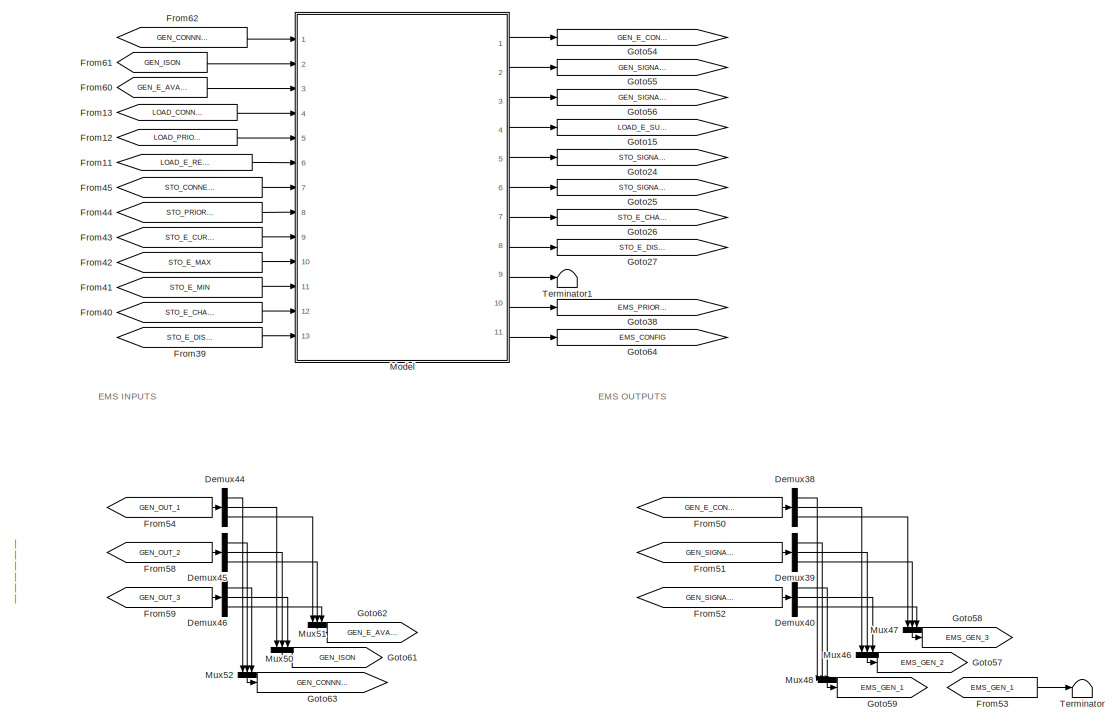
[diagram: root canvas - part 1/6, top right region]
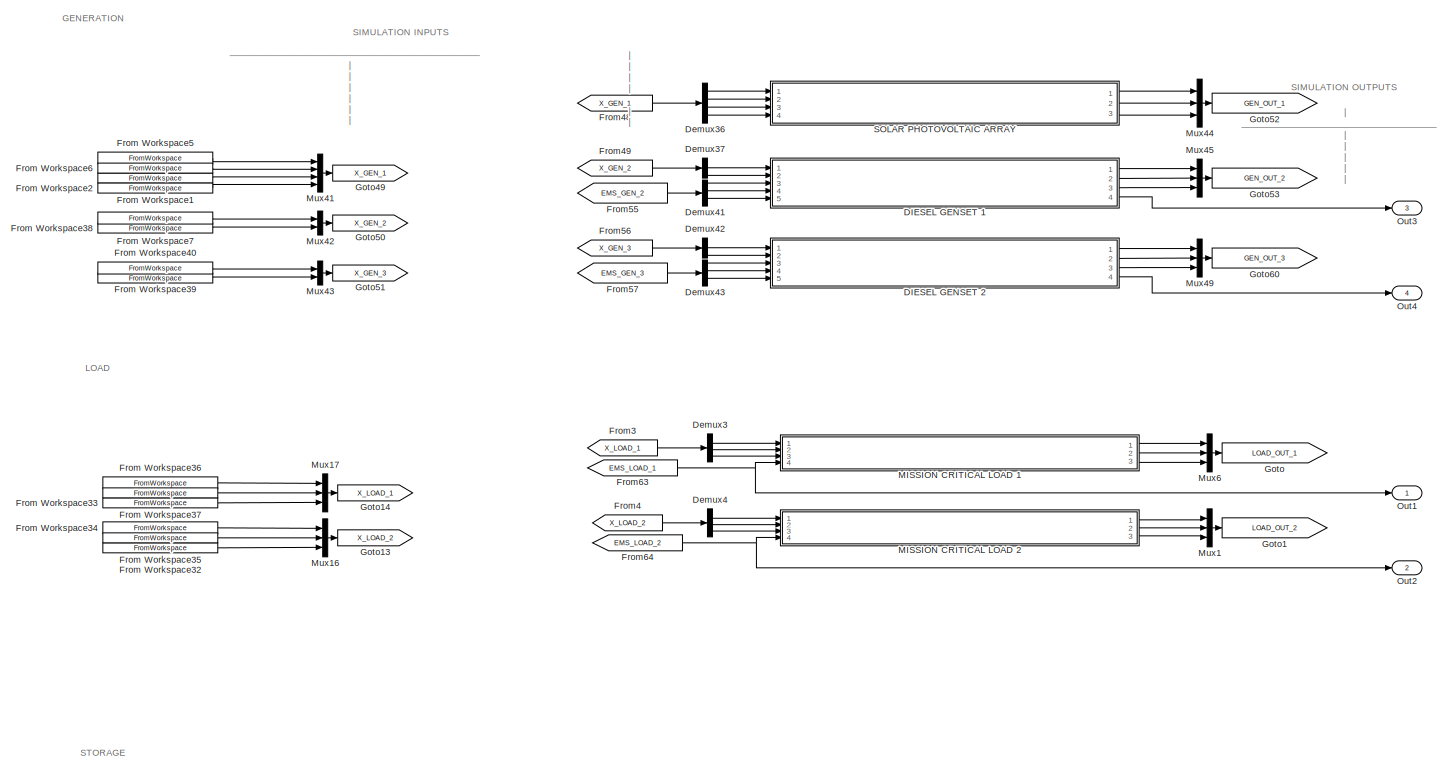
[diagram: root canvas - part 2/6, middle left region]
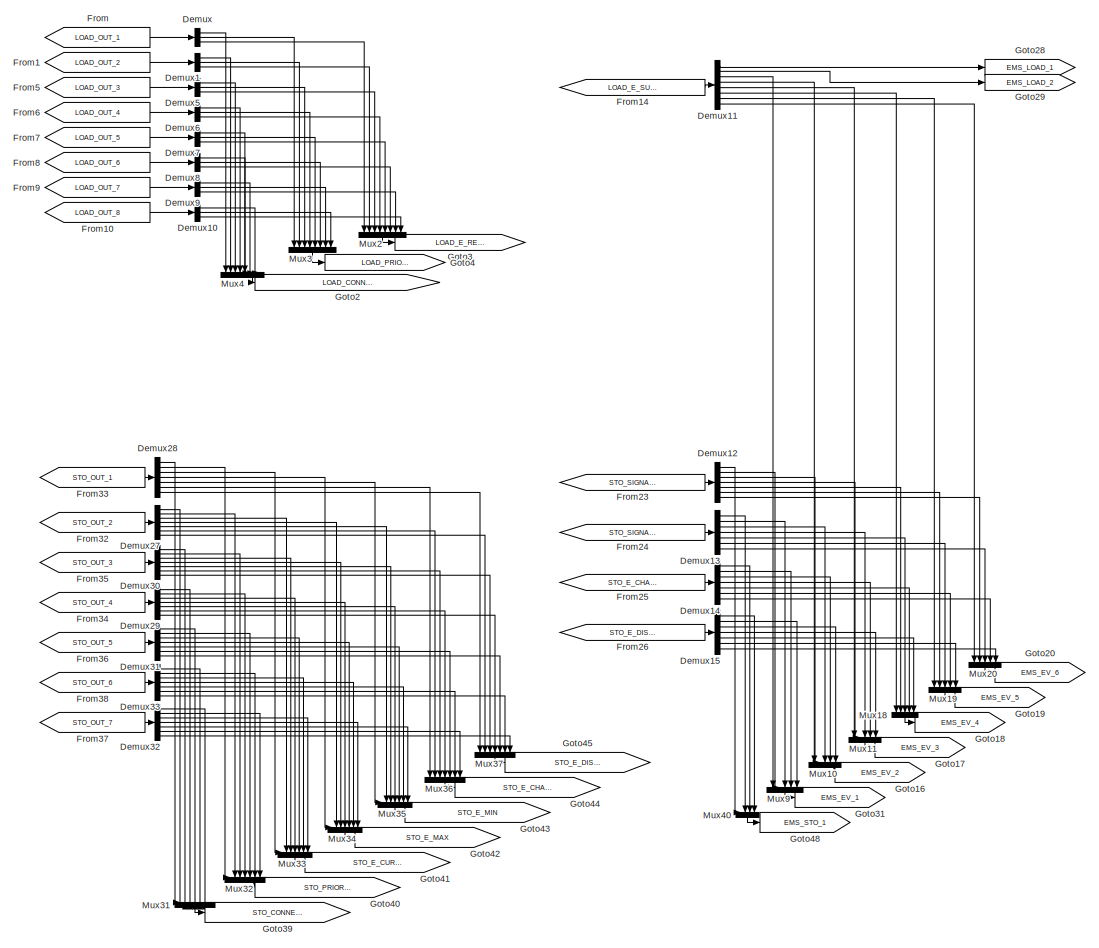
[diagram: root canvas - part 3/6, middle right region]
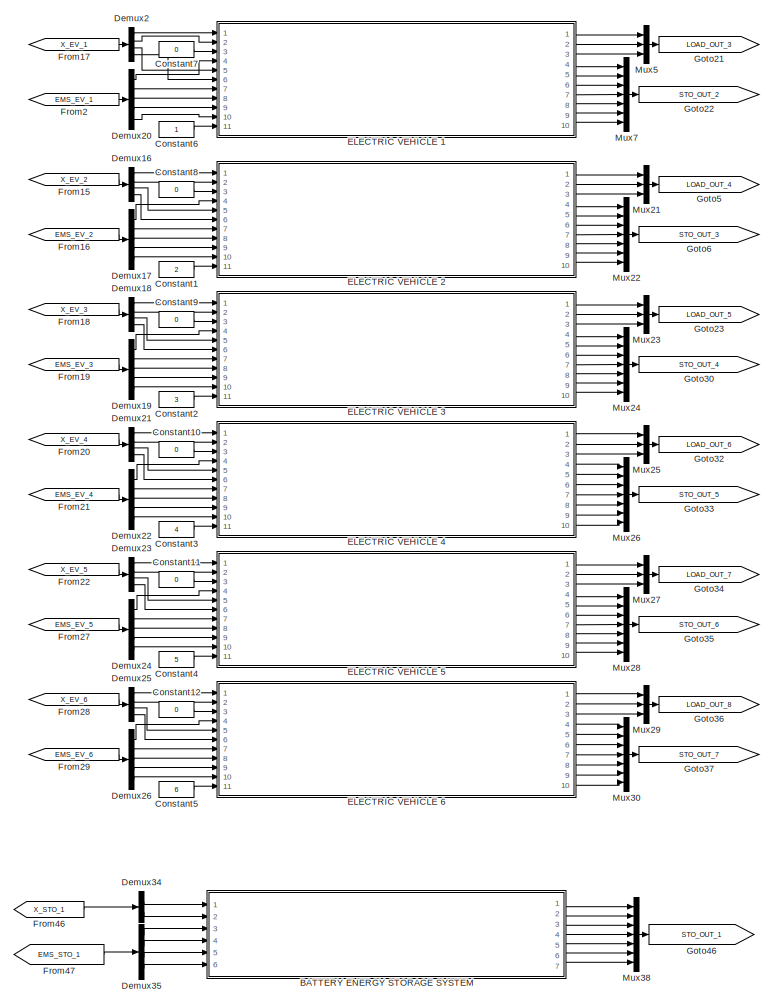
[diagram: root canvas - part 4/6, bottom left region]
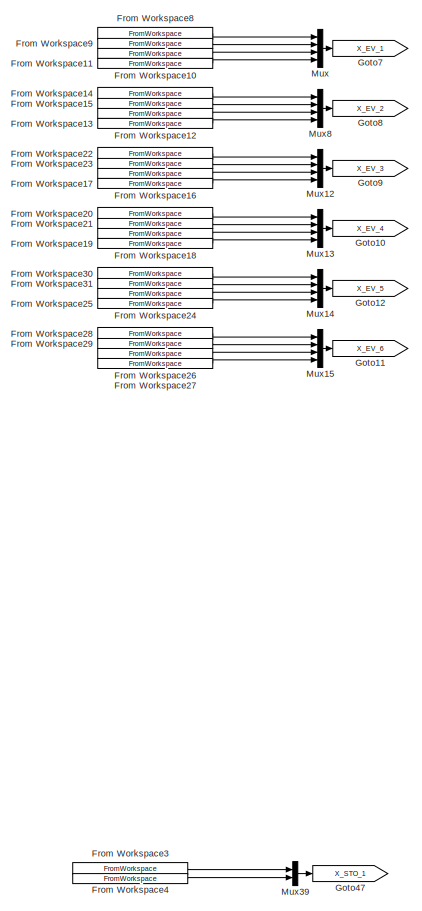
[diagram: root canvas - part 5/6, bottom left region]
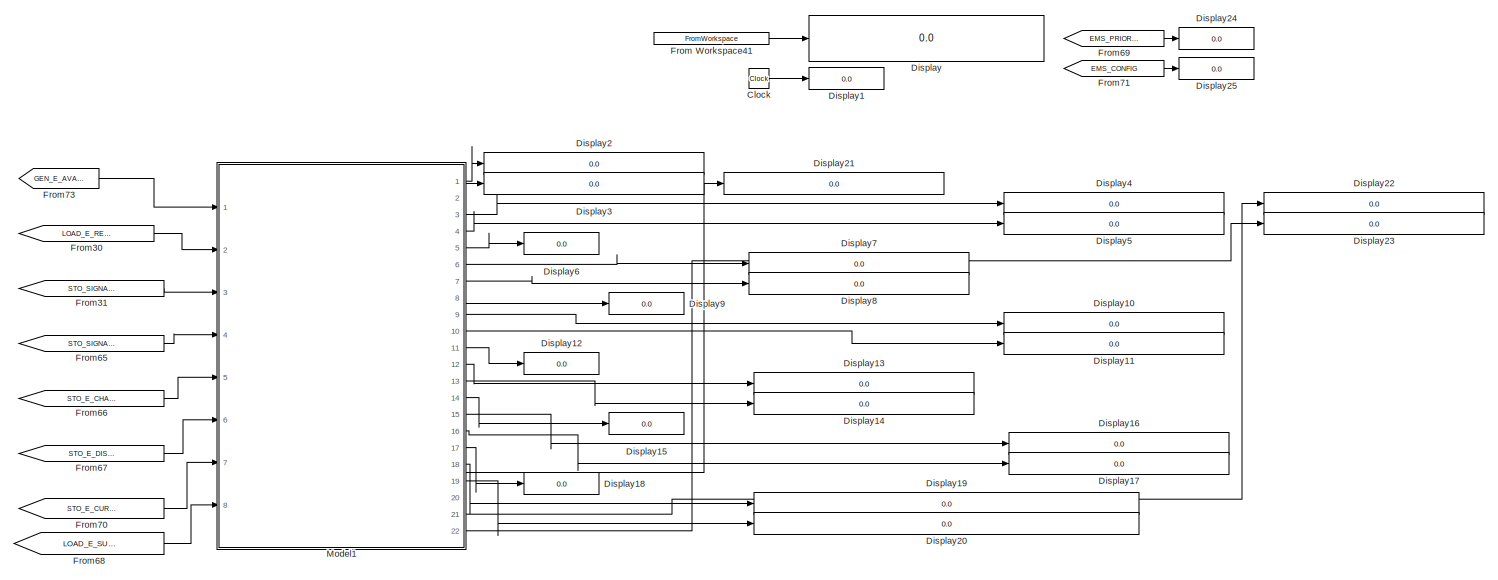
[diagram: root canvas - part 6/6, bottom right region]
MODEL slx_7c3ff5a67f98
KIND model
CONFIG AbsTol = auto
CONFIG EnableMultiTasking = off
CONFIG FixedStep = 1
CONFIG MaxStep = auto
CONFIG MinStep = auto
CONFIG RelTol = 1e-3
CONFIG SampleTimeConstraint = Unconstrained
CONFIG SolverName = FixedStepDiscrete
CONFIG StartTime = 1
CONFIG StopTime = 62945
BLOCK [ModelReference] BATTERY ENERGY STORAGE SYSTEM
  ModelNameDialog = battery_energy_storage_system.slx
  ModelReferenceVersion = 1.22
  Ports = [6, 7]
BLOCK [Clock] Clock
BLOCK [Constant] Constant1
  Value = 2
BLOCK [Constant] Constant10
  Value = 0
BLOCK [Constant] Constant11
  Value = 0
BLOCK [Constant] Constant12
  Value = 0
BLOCK [Constant] Constant2
  Value = 3
BLOCK [Constant] Constant3
  Value = 4
BLOCK [Constant] Constant4
  Value = 5
BLOCK [Constant] Constant5
  Value = 6
BLOCK [Constant] Constant6
BLOCK [Constant] Constant7
  Value = 0
BLOCK [Constant] Constant8
  Value = 0
BLOCK [Constant] Constant9
  Value = 0
BLOCK [ModelReference] DIESEL GENSET 1
  ModelNameDialog = diesel_genset.slx
  ModelReferenceVersion = 1.15
  Ports = [5, 4]
BLOCK [ModelReference] DIESEL GENSET 2
  ModelNameDialog = diesel_genset.slx
  ModelReferenceVersion = 1.15
  Ports = [5, 4]
BLOCK [Demux] Demux
  Outputs = 3
  Ports = [1, 3]
BLOCK [Demux] Demux1
  Outputs = 3
  Ports = [1, 3]
BLOCK [Demux] Demux10
  Outputs = 3
  Ports = [1, 3]
BLOCK [Demux] Demux11
  Outputs = 8
  Ports = [1, 8]
BLOCK [Demux] Demux12
  Outputs = 7
  Ports = [1, 7]
BLOCK [Demux] Demux13
  Outputs = 7
  Ports = [1, 7]
BLOCK [Demux] Demux14
  Outputs = 7
  Ports = [1, 7]
BLOCK [Demux] Demux15
  Outputs = 7
  Ports = [1, 7]
BLOCK [Demux] Demux16
  Ports = [1, 4]
BLOCK [Demux] Demux17
  Outputs = 5
  Ports = [1, 5]
BLOCK [Demux] Demux18
  Ports = [1, 4]
BLOCK [Demux] Demux19
  Outputs = 5
  Ports = [1, 5]
BLOCK [Demux] Demux2
  Ports = [1, 4]
BLOCK [Demux] Demux20
  Outputs = 5
  Ports = [1, 5]
BLOCK [Demux] Demux21
  Ports = [1, 4]
BLOCK [Demux] Demux22
  Outputs = 5
  Ports = [1, 5]
BLOCK [Demux] Demux23
  Ports = [1, 4]
BLOCK [Demux] Demux24
  Outputs = 5
  Ports = [1, 5]
BLOCK [Demux] Demux25
  Ports = [1, 4]
BLOCK [Demux] Demux26
  Outputs = 5
  Ports = [1, 5]
BLOCK [Demux] Demux27
  Outputs = 7
  Ports = [1, 7]
BLOCK [Demux] Demux28
  Outputs = 7
  Ports = [1, 7]
BLOCK [Demux] Demux29
  Outputs = 7
  Ports = [1, 7]
BLOCK [Demux] Demux3
  Outputs = 3
  Ports = [1, 3]
BLOCK [Demux] Demux30
  Outputs = 7
  Ports = [1, 7]
BLOCK [Demux] Demux31
  Outputs = 7
  Ports = [1, 7]
BLOCK [Demux] Demux32
  Outputs = 7
  Ports = [1, 7]
BLOCK [Demux] Demux33
  Outputs = 7
  Ports = [1, 7]
BLOCK [Demux] Demux34
  Outputs = 2
  Ports = [1, 2]
BLOCK [Demux] Demux35
  Ports = [1, 4]
BLOCK [Demux] Demux36
  Ports = [1, 4]
BLOCK [Demux] Demux37
  Outputs = 2
  Ports = [1, 2]
BLOCK [Demux] Demux38
  Outputs = 3
  Ports = [1, 3]
BLOCK [Demux] Demux39
  Outputs = 3
  Ports = [1, 3]
BLOCK [Demux] Demux4
  Outputs = 3
  Ports = [1, 3]
BLOCK [Demux] Demux40
  Outputs = 3
  Ports = [1, 3]
BLOCK [Demux] Demux41
  Outputs = 3
  Ports = [1, 3]
BLOCK [Demux] Demux42
  Outputs = 2
  Ports = [1, 2]
BLOCK [Demux] Demux43
  Outputs = 3
  Ports = [1, 3]
BLOCK [Demux] Demux44
  Outputs = 3
  Ports = [1, 3]
BLOCK [Demux] Demux45
  Outputs = 3
  Ports = [1, 3]
BLOCK [Demux] Demux46
  Outputs = 3
  Ports = [1, 3]
BLOCK [Demux] Demux5
  Outputs = 3
  Ports = [1, 3]
BLOCK [Demux] Demux6
  Outputs = 3
  Ports = [1, 3]
BLOCK [Demux] Demux7
  Outputs = 3
  Ports = [1, 3]
BLOCK [Demux] Demux8
  Outputs = 3
  Ports = [1, 3]
BLOCK [Demux] Demux9
  Outputs = 3
  Ports = [1, 3]
BLOCK [Display] Display
  Decimation = 1
  Ports = [1]
BLOCK [Display] Display1
  Decimation = 1
  Ports = [1]
BLOCK [Display] Display10
  Decimation = 1
  NameLocation = top
  Ports = [1]
BLOCK [Display] Display11
  Decimation = 1
  NameLocation = top
  Ports = [1]
BLOCK [Display] Display12
  Decimation = 1
  NameLocation = top
  Ports = [1]
BLOCK [Display] Display13
  Decimation = 1
  NameLocation = top
  Ports = [1]
BLOCK [Display] Display14
  Decimation = 1
  NameLocation = top
  Ports = [1]
BLOCK [Display] Display15
  Decimation = 1
  NameLocation = top
  Ports = [1]
BLOCK [Display] Display16
  Decimation = 1
  NameLocation = top
  Ports = [1]
BLOCK [Display] Display17
  Decimation = 1
  NameLocation = top
  Ports = [1]
BLOCK [Display] Display18
  Decimation = 1
  NameLocation = top
  Ports = [1]
BLOCK [Display] Display19
  Decimation = 1
  Format = long
  NameLocation = top
  Ports = [1]
BLOCK [Display] Display2
  Decimation = 1
  NameLocation = top
  Ports = [1]
BLOCK [Display] Display20
  Decimation = 1
  Format = long
  NameLocation = top
  Ports = [1]
BLOCK [Display] Display21
  Decimation = 1
  NameLocation = top
  Ports = [1]
BLOCK [Display] Display22
  Decimation = 1
  NameLocation = top
  Ports = [1]
BLOCK [Display] Display23
  Decimation = 1
  NameLocation = top
  Ports = [1]
BLOCK [Display] Display24
  Decimation = 1
  NameLocation = top
  Ports = [1]
BLOCK [Display] Display25
  Decimation = 1
  NameLocation = top
  Ports = [1]
BLOCK [Display] Display3
  Decimation = 1
  NameLocation = top
  Ports = [1]
BLOCK [Display] Display4
  Decimation = 1
  NameLocation = top
  Ports = [1]
BLOCK [Display] Display5
  Decimation = 1
  NameLocation = top
  Ports = [1]
BLOCK [Display] Display6
  Decimation = 1
  NameLocation = top
  Ports = [1]
BLOCK [Display] Display7
  Decimation = 1
  NameLocation = top
  Ports = [1]
BLOCK [Display] Display8
  Decimation = 1
  NameLocation = top
  Ports = [1]
BLOCK [Display] Display9
  Decimation = 1
  NameLocation = top
  Ports = [1]
BLOCK [ModelReference] ELECTRIC VEHICLE 1
  ModelNameDialog = electric_vehicle.slx
  ModelReferenceVersion = 1.25
  Ports = [11, 10]
BLOCK [ModelReference] ELECTRIC VEHICLE 2
  ModelNameDialog = electric_vehicle.slx
  ModelReferenceVersion = 1.25
  Ports = [11, 10]
BLOCK [ModelReference] ELECTRIC VEHICLE 3
  ModelNameDialog = electric_vehicle.slx
  ModelReferenceVersion = 1.25
  Ports = [11, 10]
BLOCK [ModelReference] ELECTRIC VEHICLE 4
  ModelNameDialog = electric_vehicle.slx
  ModelReferenceVersion = 1.25
  Ports = [11, 10]
BLOCK [ModelReference] ELECTRIC VEHICLE 5
  ModelNameDialog = electric_vehicle.slx
  ModelReferenceVersion = 1.25
  Ports = [11, 10]
BLOCK [ModelReference] ELECTRIC VEHICLE 6
  ModelNameDialog = electric_vehicle.slx
  ModelReferenceVersion = 1.25
  Ports = [11, 10]
BLOCK [From] From
  GotoTag = LOAD_OUT_1
BLOCK [FromWorkspace] From Workspace1
  VariableName = X_sim_ts(:,:,39)
  ZeroCross = off
BLOCK [FromWorkspace] From Workspace10
  VariableName = X_sim_ts(:,:,20)
  ZeroCross = off
BLOCK [FromWorkspace] From Workspace11
  VariableName = X_sim_ts(:,:,27)
  ZeroCross = off
BLOCK [FromWorkspace] From Workspace12
  VariableName = X_sim_ts(:,:,21)
  ZeroCross = off
BLOCK [FromWorkspace] From Workspace13
  VariableName = X_sim_ts(:,:,28)
  ZeroCross = off
BLOCK [FromWorkspace] From Workspace14
  VariableName = X_sim_ts(:,:,4)
  ZeroCross = off
BLOCK [FromWorkspace] From Workspace15
  VariableName = X_sim_ts(:,:,12)
  ZeroCross = off
BLOCK [FromWorkspace] From Workspace16
  VariableName = X_sim_ts(:,:,22)
  ZeroCross = off
BLOCK [FromWorkspace] From Workspace17
  VariableName = X_sim_ts(:,:,29)
  ZeroCross = off
BLOCK [FromWorkspace] From Workspace18
  VariableName = X_sim_ts(:,:,23)
  ZeroCross = off
BLOCK [FromWorkspace] From Workspace19
  VariableName = X_sim_ts(:,:,30)
  ZeroCross = off
BLOCK [FromWorkspace] From Workspace2
  VariableName = X_sim_ts(:,:,40)
  ZeroCross = off
BLOCK [FromWorkspace] From Workspace20
  VariableName = X_sim_ts(:,:,6)
  ZeroCross = off
BLOCK [FromWorkspace] From Workspace21
  VariableName = X_sim_ts(:,:,14)
  ZeroCross = off
BLOCK [FromWorkspace] From Workspace22
  VariableName = X_sim_ts(:,:,5)
  ZeroCross = off
BLOCK [FromWorkspace] From Workspace23
  VariableName = X_sim_ts(:,:,13)
  ZeroCross = off
BLOCK [FromWorkspace] From Workspace24
  VariableName = X_sim_ts(:,:,24)
  ZeroCross = off
BLOCK [FromWorkspace] From Workspace25
  VariableName = X_sim_ts(:,:,31)
  ZeroCross = off
BLOCK [FromWorkspace] From Workspace26
  VariableName = X_sim_ts(:,:,25)
  ZeroCross = off
BLOCK [FromWorkspace] From Workspace27
  VariableName = X_sim_ts(:,:,32)
  ZeroCross = off
BLOCK [FromWorkspace] From Workspace28
  VariableName = X_sim_ts(:,:,8)
  ZeroCross = off
BLOCK [FromWorkspace] From Workspace29
  VariableName = X_sim_ts(:,:,16)
  ZeroCross = off
BLOCK [FromWorkspace] From Workspace3
  VariableName = X_sim_ts(:,:,19)
  ZeroCross = off
BLOCK [FromWorkspace] From Workspace30
  VariableName = X_sim_ts(:,:,7)
  ZeroCross = off
BLOCK [FromWorkspace] From Workspace31
  VariableName = X_sim_ts(:,:,15)
  ZeroCross = off
BLOCK [FromWorkspace] From Workspace32
  VariableName = X_sim_ts(:,:,18)
  ZeroCross = off
BLOCK [FromWorkspace] From Workspace33
  VariableName = X_sim_ts(:,:,17)
  ZeroCross = off
BLOCK [FromWorkspace] From Workspace34
  VariableName = X_sim_ts(:,:,2)
  ZeroCross = off
BLOCK [FromWorkspace] From Workspace35
  VariableName = X_sim_ts(:,:,10)
  ZeroCross = off
BLOCK [FromWorkspace] From Workspace36
  VariableName = X_sim_ts(:,:,1)
  ZeroCross = off
BLOCK [FromWorkspace] From Workspace37
  VariableName = X_sim_ts(:,:,9)
  ZeroCross = off
BLOCK [FromWorkspace] From Workspace38
  VariableName = X_sim_ts(:,:,37)
  ZeroCross = off
BLOCK [FromWorkspace] From Workspace39
  VariableName = X_sim_ts(:,:,38)
  ZeroCross = off
BLOCK [FromWorkspace] From Workspace4
  VariableName = X_sim_ts(:,:,26)
  ZeroCross = off
BLOCK [FromWorkspace] From Workspace40
  VariableName = X_sim_ts(:,:,35)
  ZeroCross = off
BLOCK [FromWorkspace] From Workspace41
  VariableName = T.sim_clock_ts
  ZeroCross = off
BLOCK [FromWorkspace] From Workspace5
  SampleTime = 1
  VariableName = X_sim_ts(:,:,33)
  ZeroCross = off
BLOCK [FromWorkspace] From Workspace6
  VariableName = X_sim_ts(:,:,36)
  ZeroCross = off
BLOCK [FromWorkspace] From Workspace7
  VariableName = X_sim_ts(:,:,34)
  ZeroCross = off
BLOCK [FromWorkspace] From Workspace8
  VariableName = X_sim_ts(:,:,3)
  ZeroCross = off
BLOCK [FromWorkspace] From Workspace9
  VariableName = X_sim_ts(:,:,11)
  ZeroCross = off
BLOCK [From] From1
  GotoTag = LOAD_OUT_2
BLOCK [From] From10
  GotoTag = LOAD_OUT_8
BLOCK [From] From11
  GotoTag = LOAD_E_REQUIRED
BLOCK [From] From12
  GotoTag = LOAD_PRIORITY
BLOCK [From] From13
  GotoTag = LOAD_CONNECTED
BLOCK [From] From14
  GotoTag = LOAD_E_SUPPLIED
BLOCK [From] From15
  GotoTag = X_EV_2
BLOCK [From] From16
  GotoTag = EMS_EV_2
BLOCK [From] From17
  GotoTag = X_EV_1
BLOCK [From] From18
  GotoTag = X_EV_3
BLOCK [From] From19
  GotoTag = EMS_EV_3
BLOCK [From] From2
  GotoTag = EMS_EV_1
BLOCK [From] From20
  GotoTag = X_EV_4
BLOCK [From] From21
  GotoTag = EMS_EV_4
BLOCK [From] From22
  GotoTag = X_EV_5
BLOCK [From] From23
  GotoTag = STO_SIGNAL_CHARGE
BLOCK [From] From24
  GotoTag = STO_SIGNAL_DISCHARGE
BLOCK [From] From25
  GotoTag = STO_E_CHARGE
BLOCK [From] From26
  GotoTag = STO_E_DISCHARGE
BLOCK [From] From27
  GotoTag = EMS_EV_5
BLOCK [From] From28
  GotoTag = X_EV_6
BLOCK [From] From29
  GotoTag = EMS_EV_6
BLOCK [From] From3
  GotoTag = X_LOAD_1
BLOCK [From] From30
  GotoTag = LOAD_E_REQUIRED
BLOCK [From] From31
  GotoTag = STO_SIGNAL_CHARGE
BLOCK [From] From32
  GotoTag = STO_OUT_2
BLOCK [From] From33
  GotoTag = STO_OUT_1
BLOCK [From] From34
  GotoTag = STO_OUT_4
BLOCK [From] From35
  GotoTag = STO_OUT_3
BLOCK [From] From36
  GotoTag = STO_OUT_5
BLOCK [From] From37
  GotoTag = STO_OUT_7
BLOCK [From] From38
  GotoTag = STO_OUT_6
BLOCK [From] From39
  GotoTag = STO_E_DISCHARGE_MAX
BLOCK [From] From4
  GotoTag = X_LOAD_2
BLOCK [From] From40
  GotoTag = STO_E_CHARGE_MAX
BLOCK [From] From41
  GotoTag = STO_E_MIN
BLOCK [From] From42
  GotoTag = STO_E_MAX
BLOCK [From] From43
  GotoTag = STO_E_CURRENT
BLOCK [From] From44
  GotoTag = STO_PRIORITY
BLOCK [From] From45
  GotoTag = STO_CONNECTED
BLOCK [From] From46
  GotoTag = X_STO_1
BLOCK [From] From47
  GotoTag = EMS_STO_1
BLOCK [From] From48
  GotoTag = X_GEN_1
BLOCK [From] From49
  GotoTag = X_GEN_2
BLOCK [From] From5
  GotoTag = LOAD_OUT_3
BLOCK [From] From50
  GotoTag = GEN_E_CONSUMED
BLOCK [From] From51
  GotoTag = GEN_SIGNAL_TURNON
BLOCK [From] From52
  GotoTag = GEN_SIGNAL_TURNOFF
BLOCK [From] From53
  GotoTag = EMS_GEN_1
BLOCK [From] From54
  GotoTag = GEN_OUT_1
BLOCK [From] From55
  GotoTag = EMS_GEN_2
BLOCK [From] From56
  GotoTag = X_GEN_3
BLOCK [From] From57
  GotoTag = EMS_GEN_3
BLOCK [From] From58
  GotoTag = GEN_OUT_2
BLOCK [From] From59
  GotoTag = GEN_OUT_3
BLOCK [From] From6
  GotoTag = LOAD_OUT_4
BLOCK [From] From60
  GotoTag = GEN_E_AVAIL
BLOCK [From] From61
  GotoTag = GEN_ISON
BLOCK [From] From62
  GotoTag = GEN_CONNNECTED
BLOCK [From] From63
  GotoTag = EMS_LOAD_1
BLOCK [From] From64
  GotoTag = EMS_LOAD_2
BLOCK [From] From65
  GotoTag = STO_SIGNAL_DISCHARGE
BLOCK [From] From66
  GotoTag = STO_E_CHARGE
BLOCK [From] From67
  GotoTag = STO_E_DISCHARGE
BLOCK [From] From68
  GotoTag = LOAD_E_SUPPLIED
BLOCK [From] From69
  GotoTag = EMS_PRIORITY
BLOCK [From] From7
  GotoTag = LOAD_OUT_5
BLOCK [From] From70
  GotoTag = STO_E_CURRENT
BLOCK [From] From71
  GotoTag = EMS_CONFIG
BLOCK [From] From73
  GotoTag = GEN_E_AVAIL
BLOCK [From] From8
  GotoTag = LOAD_OUT_6
BLOCK [From] From9
  GotoTag = LOAD_OUT_7
BLOCK [Goto] Goto
  GotoTag = LOAD_OUT_1
BLOCK [Goto] Goto1
  GotoTag = LOAD_OUT_2
BLOCK [Goto] Goto10
  GotoTag = X_EV_4
BLOCK [Goto] Goto11
  GotoTag = X_EV_6
BLOCK [Goto] Goto12
  GotoTag = X_EV_5
BLOCK [Goto] Goto13
  GotoTag = X_LOAD_2
BLOCK [Goto] Goto14
  GotoTag = X_LOAD_1
BLOCK [Goto] Goto15
  GotoTag = LOAD_E_SUPPLIED
BLOCK [Goto] Goto16
  GotoTag = EMS_EV_2
BLOCK [Goto] Goto17
  GotoTag = EMS_EV_3
BLOCK [Goto] Goto18
  GotoTag = EMS_EV_4
BLOCK [Goto] Goto19
  GotoTag = EMS_EV_5
BLOCK [Goto] Goto2
  GotoTag = LOAD_CONNECTED
BLOCK [Goto] Goto20
  GotoTag = EMS_EV_6
BLOCK [Goto] Goto21
  GotoTag = LOAD_OUT_3
BLOCK [Goto] Goto22
  GotoTag = STO_OUT_2
BLOCK [Goto] Goto23
  GotoTag = LOAD_OUT_5
BLOCK [Goto] Goto24
  GotoTag = STO_SIGNAL_CHARGE
BLOCK [Goto] Goto25
  GotoTag = STO_SIGNAL_DISCHARGE
BLOCK [Goto] Goto26
  GotoTag = STO_E_CHARGE
BLOCK [Goto] Goto27
  GotoTag = STO_E_DISCHARGE
BLOCK [Goto] Goto28
  GotoTag = EMS_LOAD_1
BLOCK [Goto] Goto29
  GotoTag = EMS_LOAD_2
BLOCK [Goto] Goto3
  GotoTag = LOAD_E_REQUIRED
BLOCK [Goto] Goto30
  GotoTag = STO_OUT_4
BLOCK [Goto] Goto31
  GotoTag = EMS_EV_1
BLOCK [Goto] Goto32
  GotoTag = LOAD_OUT_6
BLOCK [Goto] Goto33
  GotoTag = STO_OUT_5
BLOCK [Goto] Goto34
  GotoTag = LOAD_OUT_7
BLOCK [Goto] Goto35
  GotoTag = STO_OUT_6
BLOCK [Goto] Goto36
  GotoTag = LOAD_OUT_8
BLOCK [Goto] Goto37
  GotoTag = STO_OUT_7
BLOCK [Goto] Goto38
  GotoTag = EMS_PRIORITY
BLOCK [Goto] Goto39
  GotoTag = STO_CONNECTED
BLOCK [Goto] Goto4
  GotoTag = LOAD_PRIORITY
BLOCK [Goto] Goto40
  GotoTag = STO_PRIORITY
BLOCK [Goto] Goto41
  GotoTag = STO_E_CURRENT
BLOCK [Goto] Goto42
  GotoTag = STO_E_MAX
BLOCK [Goto] Goto43
  GotoTag = STO_E_MIN
BLOCK [Goto] Goto44
  GotoTag = STO_E_CHARGE_MAX
BLOCK [Goto] Goto45
  GotoTag = STO_E_DISCHARGE_MAX
BLOCK [Goto] Goto46
  GotoTag = STO_OUT_1
BLOCK [Goto] Goto47
  GotoTag = X_STO_1
BLOCK [Goto] Goto48
  GotoTag = EMS_STO_1
BLOCK [Goto] Goto49
  GotoTag = X_GEN_1
BLOCK [Goto] Goto5
  GotoTag = LOAD_OUT_4
BLOCK [Goto] Goto50
  GotoTag = X_GEN_2
BLOCK [Goto] Goto51
  GotoTag = X_GEN_3
BLOCK [Goto] Goto52
  GotoTag = GEN_OUT_1
BLOCK [Goto] Goto53
  GotoTag = GEN_OUT_2
BLOCK [Goto] Goto54
  GotoTag = GEN_E_CONSUMED
BLOCK [Goto] Goto55
  GotoTag = GEN_SIGNAL_TURNON
BLOCK [Goto] Goto56
  GotoTag = GEN_SIGNAL_TURNOFF
BLOCK [Goto] Goto57
  GotoTag = EMS_GEN_2
BLOCK [Goto] Goto58
  GotoTag = EMS_GEN_3
BLOCK [Goto] Goto59
  GotoTag = EMS_GEN_1
BLOCK [Goto] Goto6
  GotoTag = STO_OUT_3
BLOCK [Goto] Goto60
  GotoTag = GEN_OUT_3
BLOCK [Goto] Goto61
  GotoTag = GEN_ISON
BLOCK [Goto] Goto62
  GotoTag = GEN_E_AVAIL
BLOCK [Goto] Goto63
  GotoTag = GEN_CONNNECTED
BLOCK [Goto] Goto64
  GotoTag = EMS_CONFIG
BLOCK [Goto] Goto7
  GotoTag = X_EV_1
BLOCK [Goto] Goto8
  GotoTag = X_EV_2
BLOCK [Goto] Goto9
  GotoTag = X_EV_3
BLOCK [ModelReference] MISSION CRITICAL LOAD 1
  ModelNameDialog = electrical_load.slx
  ModelReferenceVersion = 1.7
  Ports = [4, 3]
BLOCK [ModelReference] MISSION CRITICAL LOAD 2
  ModelNameDialog = electrical_load.slx
  ModelReferenceVersion = 1.7
  Ports = [4, 3]
BLOCK [ModelReference] Model
  ModelNameDialog = energy_management_system_functional.slx
  ModelReferenceVersion = 1.221
  Ports = [13, 11]
BLOCK [ModelReference] Model1
  ModelNameDialog = model_scopes.slx
  ModelReferenceVersion = 1.27
  Ports = [8, 22]
BLOCK [Mux] Mux
  DisplayOption = bar
  Ports = [4, 1]
BLOCK [Mux] Mux1
  DisplayOption = bar
  Inputs = 3
  Ports = [3, 1]
BLOCK [Mux] Mux10
  DisplayOption = bar
  Inputs = 5
  NameLocation = left
  Ports = [5, 1]
BLOCK [Mux] Mux11
  DisplayOption = bar
  Inputs = 5
  NameLocation = left
  Ports = [5, 1]
BLOCK [Mux] Mux12
  DisplayOption = bar
  Ports = [4, 1]
BLOCK [Mux] Mux13
  DisplayOption = bar
  Ports = [4, 1]
BLOCK [Mux] Mux14
  DisplayOption = bar
  Ports = [4, 1]
BLOCK [Mux] Mux15
  DisplayOption = bar
  Ports = [4, 1]
BLOCK [Mux] Mux16
  DisplayOption = bar
  Inputs = 3
  Ports = [3, 1]
BLOCK [Mux] Mux17
  DisplayOption = bar
  Inputs = 3
  Ports = [3, 1]
BLOCK [Mux] Mux18
  DisplayOption = bar
  Inputs = 5
  NameLocation = left
  Ports = [5, 1]
BLOCK [Mux] Mux19
  DisplayOption = bar
  Inputs = 5
  NameLocation = left
  Ports = [5, 1]
BLOCK [Mux] Mux2
  DisplayOption = bar
  Inputs = 8
  NameLocation = left
  Ports = [8, 1]
BLOCK [Mux] Mux20
  DisplayOption = bar
  Inputs = 5
  NameLocation = left
  Ports = [5, 1]
BLOCK [Mux] Mux21
  DisplayOption = bar
  Inputs = 3
  Ports = [3, 1]
BLOCK [Mux] Mux22
  DisplayOption = bar
  Inputs = 7
  Ports = [7, 1]
BLOCK [Mux] Mux23
  DisplayOption = bar
  Inputs = 3
  Ports = [3, 1]
BLOCK [Mux] Mux24
  DisplayOption = bar
  Inputs = 7
  Ports = [7, 1]
BLOCK [Mux] Mux25
  DisplayOption = bar
  Inputs = 3
  Ports = [3, 1]
BLOCK [Mux] Mux26
  DisplayOption = bar
  Inputs = 7
  Ports = [7, 1]
BLOCK [Mux] Mux27
  DisplayOption = bar
  Inputs = 3
  Ports = [3, 1]
BLOCK [Mux] Mux28
  DisplayOption = bar
  Inputs = 7
  Ports = [7, 1]
BLOCK [Mux] Mux29
  DisplayOption = bar
  Inputs = 3
  Ports = [3, 1]
BLOCK [Mux] Mux3
  DisplayOption = bar
  Inputs = 8
  NameLocation = left
  Ports = [8, 1]
BLOCK [Mux] Mux30
  DisplayOption = bar
  Inputs = 7
  Ports = [7, 1]
BLOCK [Mux] Mux31
  DisplayOption = bar
  Inputs = 7
  NameLocation = left
  Ports = [7, 1]
BLOCK [Mux] Mux32
  DisplayOption = bar
  Inputs = 7
  NameLocation = left
  Ports = [7, 1]
BLOCK [Mux] Mux33
  DisplayOption = bar
  Inputs = 7
  NameLocation = left
  Ports = [7, 1]
BLOCK [Mux] Mux34
  DisplayOption = bar
  Inputs = 7
  NameLocation = left
  Ports = [7, 1]
BLOCK [Mux] Mux35
  DisplayOption = bar
  Inputs = 7
  NameLocation = left
  Ports = [7, 1]
BLOCK [Mux] Mux36
  DisplayOption = bar
  Inputs = 7
  NameLocation = left
  Ports = [7, 1]
BLOCK [Mux] Mux37
  DisplayOption = bar
  Inputs = 7
  NameLocation = left
  Ports = [7, 1]
BLOCK [Mux] Mux38
  DisplayOption = bar
  Inputs = 7
  Ports = [7, 1]
BLOCK [Mux] Mux39
  DisplayOption = bar
  Inputs = 2
  Ports = [2, 1]
BLOCK [Mux] Mux4
  DisplayOption = bar
  Inputs = 8
  NameLocation = left
  Ports = [8, 1]
BLOCK [Mux] Mux40
  DisplayOption = bar
  NameLocation = left
  Ports = [4, 1]
BLOCK [Mux] Mux41
  DisplayOption = bar
  Ports = [4, 1]
BLOCK [Mux] Mux42
  DisplayOption = bar
  Inputs = 2
  Ports = [2, 1]
BLOCK [Mux] Mux43
  DisplayOption = bar
  Inputs = 2
  Ports = [2, 1]
BLOCK [Mux] Mux44
  DisplayOption = bar
  Inputs = 3
  Ports = [3, 1]
BLOCK [Mux] Mux45
  DisplayOption = bar
  Inputs = 3
  Ports = [3, 1]
BLOCK [Mux] Mux46
  DisplayOption = bar
  Inputs = 3
  NameLocation = left
  Ports = [3, 1]
BLOCK [Mux] Mux47
  DisplayOption = bar
  Inputs = 3
  NameLocation = left
  Ports = [3, 1]
BLOCK [Mux] Mux48
  DisplayOption = bar
  Inputs = 3
  NameLocation = left
  Ports = [3, 1]
BLOCK [Mux] Mux49
  DisplayOption = bar
  Inputs = 3
  Ports = [3, 1]
BLOCK [Mux] Mux5
  DisplayOption = bar
  Inputs = 3
  Ports = [3, 1]
BLOCK [Mux] Mux50
  DisplayOption = bar
  Inputs = 3
  NameLocation = left
  Ports = [3, 1]
BLOCK [Mux] Mux51
  DisplayOption = bar
  Inputs = 3
  NameLocation = left
  Ports = [3, 1]
BLOCK [Mux] Mux52
  DisplayOption = bar
  Inputs = 3
  NameLocation = left
  Ports = [3, 1]
BLOCK [Mux] Mux6
  DisplayOption = bar
  Inputs = 3
  Ports = [3, 1]
BLOCK [Mux] Mux7
  DisplayOption = bar
  Inputs = 7
  Ports = [7, 1]
BLOCK [Mux] Mux8
  DisplayOption = bar
  Ports = [4, 1]
BLOCK [Mux] Mux9
  DisplayOption = bar
  Inputs = 5
  NameLocation = left
  Ports = [5, 1]
BLOCK [Outport] Out1
  SignalName = load_E_supplied_1
BLOCK [Outport] Out2
  Port = 2
  SignalName = load_E_supplied_2
BLOCK [Outport] Out3
  Port = 3
  SignalName = fuel_consumed_1
BLOCK [Outport] Out4
  Port = 4
  SignalName = fuel_consumed_2
BLOCK [ModelReference] SOLAR PHOTOVOLTAIC ARRAY
  ModelNameDialog = solar_photovoltaic_array.slx
  ModelReferenceVersion = 1.15
  Ports = [4, 3]
BLOCK [Terminator] Terminator
BLOCK [Terminator] Terminator1
ANNOTATION (root): GENERATION
ANNOTATION (root): LOAD
ANNOTATION (root): STORAGE
ANNOTATION (root): __________________________________________________
ANNOTATION (root): _______________________________________
ANNOTATION (root): SIMULATION INPUTS
ANNOTATION (root): SIMULATION OUTPUTS
ANNOTATION (root): | | | | | | | | | | | | | | | | | | | | | | | | | | | | | | | | | | | | | | | | | | | | | | | | | | | | | | | | | | | | | | | | | | | | | | | | | | | | | | | | | | | | | | | | | | | | | | | | | | | | | | | | | | | | | | | | | | | | | | | | | | | | | | | | | | | | | | | | | | | | | | | | | | | | |
ANNOTATION (root): | | | | | | | | | | | | | | | | | | | | | | | | | | | | | | | | | | | | | | | | | | | | | | | |
ANNOTATION (root): EMS INPUTS
ANNOTATION (root): EMS OUTPUTS
LINE BATTERY ENERGY STORAGE SYSTEM:1 -> Mux38:1
LINE BATTERY ENERGY STORAGE SYSTEM:2 -> Mux38:2
LINE BATTERY ENERGY STORAGE SYSTEM:3 -> Mux38:3
LINE BATTERY ENERGY STORAGE SYSTEM:4 -> Mux38:4
LINE BATTERY ENERGY STORAGE SYSTEM:5 -> Mux38:5
LINE BATTERY ENERGY STORAGE SYSTEM:6 -> Mux38:6
LINE BATTERY ENERGY STORAGE SYSTEM:7 -> Mux38:7
LINE Clock:1 -> Display1:1
LINE Constant10:1 -> ELECTRIC VEHICLE 4:3
LINE Constant11:1 -> ELECTRIC VEHICLE 5:3
LINE Constant12:1 -> ELECTRIC VEHICLE 6:3
LINE Constant1:1 -> ELECTRIC VEHICLE 2:11
LINE Constant2:1 -> ELECTRIC VEHICLE 3:11
LINE Constant3:1 -> ELECTRIC VEHICLE 4:11
LINE Constant4:1 -> ELECTRIC VEHICLE 5:11
LINE Constant5:1 -> ELECTRIC VEHICLE 6:11
LINE Constant6:1 -> ELECTRIC VEHICLE 1:11
LINE Constant7:1 -> ELECTRIC VEHICLE 1:3
LINE Constant8:1 -> ELECTRIC VEHICLE 2:3
LINE Constant9:1 -> ELECTRIC VEHICLE 3:3
LINE DIESEL GENSET 1:1 -> Mux45:1
LINE DIESEL GENSET 1:2 -> Mux45:2
LINE DIESEL GENSET 1:3 -> Mux45:3
LINE DIESEL GENSET 1:4 -> Out3:1
LINE DIESEL GENSET 2:1 -> Mux49:1
LINE DIESEL GENSET 2:2 -> Mux49:2
LINE DIESEL GENSET 2:3 -> Mux49:3
LINE DIESEL GENSET 2:4 -> Out4:1
LINE Demux10:1 -> Mux4:8
LINE Demux10:2 -> Mux3:8
LINE Demux10:3 -> Mux2:8
LINE Demux11:1 -> Goto28:1
LINE Demux11:2 -> Goto29:1
LINE Demux11:3 -> Mux9:1
LINE Demux11:4 -> Mux10:1
LINE Demux11:5 -> Mux11:1
LINE Demux11:6 -> Mux18:1
LINE Demux11:7 -> Mux19:1
LINE Demux11:8 -> Mux20:1
LINE Demux12:1 -> Mux40:1
LINE Demux12:2 -> Mux9:2
LINE Demux12:3 -> Mux10:2
LINE Demux12:4 -> Mux11:2
LINE Demux12:5 -> Mux18:2
LINE Demux12:6 -> Mux19:2
LINE Demux12:7 -> Mux20:2
LINE Demux13:1 -> Mux40:2
LINE Demux13:2 -> Mux9:3
LINE Demux13:3 -> Mux10:3
LINE Demux13:4 -> Mux11:3
LINE Demux13:5 -> Mux18:3
LINE Demux13:6 -> Mux19:3
LINE Demux13:7 -> Mux20:3
LINE Demux14:1 -> Mux40:3
LINE Demux14:2 -> Mux9:4
LINE Demux14:3 -> Mux10:4
LINE Demux14:4 -> Mux11:4
LINE Demux14:5 -> Mux18:4
LINE Demux14:6 -> Mux19:4
LINE Demux14:7 -> Mux20:4
LINE Demux15:1 -> Mux40:4
LINE Demux15:2 -> Mux9:5
LINE Demux15:3 -> Mux10:5
LINE Demux15:4 -> Mux11:5
LINE Demux15:5 -> Mux18:5
LINE Demux15:6 -> Mux19:5
LINE Demux15:7 -> Mux20:5
LINE Demux16:1 -> ELECTRIC VEHICLE 2:1
LINE Demux16:2 -> ELECTRIC VEHICLE 2:2
LINE Demux16:3 -> ELECTRIC VEHICLE 2:5
LINE Demux16:4 -> ELECTRIC VEHICLE 2:6
LINE Demux17:1 -> ELECTRIC VEHICLE 2:4
LINE Demux17:2 -> ELECTRIC VEHICLE 2:7
LINE Demux17:3 -> ELECTRIC VEHICLE 2:8
LINE Demux17:4 -> ELECTRIC VEHICLE 2:9
LINE Demux17:5 -> ELECTRIC VEHICLE 2:10
LINE Demux18:1 -> ELECTRIC VEHICLE 3:1
LINE Demux18:2 -> ELECTRIC VEHICLE 3:2
LINE Demux18:3 -> ELECTRIC VEHICLE 3:5
LINE Demux18:4 -> ELECTRIC VEHICLE 3:6
LINE Demux19:1 -> ELECTRIC VEHICLE 3:4
LINE Demux19:2 -> ELECTRIC VEHICLE 3:7
LINE Demux19:3 -> ELECTRIC VEHICLE 3:8
LINE Demux19:4 -> ELECTRIC VEHICLE 3:9
LINE Demux19:5 -> ELECTRIC VEHICLE 3:10
LINE Demux1:1 -> Mux4:2
LINE Demux1:2 -> Mux3:2
LINE Demux1:3 -> Mux2:2
LINE Demux20:1 -> ELECTRIC VEHICLE 1:4
LINE Demux20:2 -> ELECTRIC VEHICLE 1:7
LINE Demux20:3 -> ELECTRIC VEHICLE 1:8
LINE Demux20:4 -> ELECTRIC VEHICLE 1:9
LINE Demux20:5 -> ELECTRIC VEHICLE 1:10
LINE Demux21:1 -> ELECTRIC VEHICLE 4:1
LINE Demux21:2 -> ELECTRIC VEHICLE 4:2
LINE Demux21:3 -> ELECTRIC VEHICLE 4:5
LINE Demux21:4 -> ELECTRIC VEHICLE 4:6
LINE Demux22:1 -> ELECTRIC VEHICLE 4:4
LINE Demux22:2 -> ELECTRIC VEHICLE 4:7
LINE Demux22:3 -> ELECTRIC VEHICLE 4:8
LINE Demux22:4 -> ELECTRIC VEHICLE 4:9
LINE Demux22:5 -> ELECTRIC VEHICLE 4:10
LINE Demux23:1 -> ELECTRIC VEHICLE 5:1
LINE Demux23:2 -> ELECTRIC VEHICLE 5:2
LINE Demux23:3 -> ELECTRIC VEHICLE 5:5
LINE Demux23:4 -> ELECTRIC VEHICLE 5:6
LINE Demux24:1 -> ELECTRIC VEHICLE 5:4
LINE Demux24:2 -> ELECTRIC VEHICLE 5:7
LINE Demux24:3 -> ELECTRIC VEHICLE 5:8
LINE Demux24:4 -> ELECTRIC VEHICLE 5:9
LINE Demux24:5 -> ELECTRIC VEHICLE 5:10
LINE Demux25:1 -> ELECTRIC VEHICLE 6:1
LINE Demux25:2 -> ELECTRIC VEHICLE 6:2
LINE Demux25:3 -> ELECTRIC VEHICLE 6:5
LINE Demux25:4 -> ELECTRIC VEHICLE 6:6
LINE Demux26:1 -> ELECTRIC VEHICLE 6:4
LINE Demux26:2 -> ELECTRIC VEHICLE 6:7
LINE Demux26:3 -> ELECTRIC VEHICLE 6:8
LINE Demux26:4 -> ELECTRIC VEHICLE 6:9
LINE Demux26:5 -> ELECTRIC VEHICLE 6:10
LINE Demux27:1 -> Mux31:2
LINE Demux27:2 -> Mux32:2
LINE Demux27:3 -> Mux33:2
LINE Demux27:4 -> Mux34:2
LINE Demux27:5 -> Mux35:2
LINE Demux27:6 -> Mux36:2
LINE Demux27:7 -> Mux37:2
LINE Demux28:1 -> Mux31:1
LINE Demux28:2 -> Mux32:1
LINE Demux28:3 -> Mux33:1
LINE Demux28:4 -> Mux34:1
LINE Demux28:5 -> Mux35:1
LINE Demux28:6 -> Mux36:1
LINE Demux28:7 -> Mux37:1
LINE Demux29:1 -> Mux31:4
LINE Demux29:2 -> Mux32:4
LINE Demux29:3 -> Mux33:4
LINE Demux29:4 -> Mux34:4
LINE Demux29:5 -> Mux35:4
LINE Demux29:6 -> Mux36:4
LINE Demux29:7 -> Mux37:4
LINE Demux2:1 -> ELECTRIC VEHICLE 1:1
LINE Demux2:2 -> ELECTRIC VEHICLE 1:2
LINE Demux2:3 -> ELECTRIC VEHICLE 1:5
LINE Demux2:4 -> ELECTRIC VEHICLE 1:6
LINE Demux30:1 -> Mux31:3
LINE Demux30:2 -> Mux32:3
LINE Demux30:3 -> Mux33:3
LINE Demux30:4 -> Mux34:3
LINE Demux30:5 -> Mux35:3
LINE Demux30:6 -> Mux36:3
LINE Demux30:7 -> Mux37:3
LINE Demux31:1 -> Mux31:5
LINE Demux31:2 -> Mux32:5
LINE Demux31:3 -> Mux33:5
LINE Demux31:4 -> Mux34:5
LINE Demux31:5 -> Mux35:5
LINE Demux31:6 -> Mux36:5
LINE Demux31:7 -> Mux37:5
LINE Demux32:1 -> Mux31:7
LINE Demux32:2 -> Mux32:7
LINE Demux32:3 -> Mux33:7
LINE Demux32:4 -> Mux34:7
LINE Demux32:5 -> Mux35:7
LINE Demux32:6 -> Mux36:7
LINE Demux32:7 -> Mux37:7
LINE Demux33:1 -> Mux31:6
LINE Demux33:2 -> Mux32:6
LINE Demux33:3 -> Mux33:6
LINE Demux33:4 -> Mux34:6
LINE Demux33:5 -> Mux35:6
LINE Demux33:6 -> Mux36:6
LINE Demux33:7 -> Mux37:6
LINE Demux34:1 -> BATTERY ENERGY STORAGE SYSTEM:1
LINE Demux34:2 -> BATTERY ENERGY STORAGE SYSTEM:2
LINE Demux35:1 -> BATTERY ENERGY STORAGE SYSTEM:3
LINE Demux35:2 -> BATTERY ENERGY STORAGE SYSTEM:4
LINE Demux35:3 -> BATTERY ENERGY STORAGE SYSTEM:5
LINE Demux35:4 -> BATTERY ENERGY STORAGE SYSTEM:6
LINE Demux36:1 -> SOLAR PHOTOVOLTAIC ARRAY:1
LINE Demux36:2 -> SOLAR PHOTOVOLTAIC ARRAY:2
LINE Demux36:3 -> SOLAR PHOTOVOLTAIC ARRAY:3
LINE Demux36:4 -> SOLAR PHOTOVOLTAIC ARRAY:4
LINE Demux37:1 -> DIESEL GENSET 1:1
LINE Demux37:2 -> DIESEL GENSET 1:2
LINE Demux38:1 -> Mux48:1
LINE Demux38:2 -> Mux46:1
LINE Demux38:3 -> Mux47:1
LINE Demux39:1 -> Mux48:2
LINE Demux39:2 -> Mux46:2
LINE Demux39:3 -> Mux47:2
LINE Demux3:1 -> MISSION CRITICAL LOAD 1:1
LINE Demux3:2 -> MISSION CRITICAL LOAD 1:2
LINE Demux3:3 -> MISSION CRITICAL LOAD 1:3
LINE Demux40:1 -> Mux48:3
LINE Demux40:2 -> Mux46:3
LINE Demux40:3 -> Mux47:3
LINE Demux41:1 -> DIESEL GENSET 1:3
LINE Demux41:2 -> DIESEL GENSET 1:4
LINE Demux41:3 -> DIESEL GENSET 1:5
LINE Demux42:1 -> DIESEL GENSET 2:1
LINE Demux42:2 -> DIESEL GENSET 2:2
LINE Demux43:1 -> DIESEL GENSET 2:3
LINE Demux43:2 -> DIESEL GENSET 2:4
LINE Demux43:3 -> DIESEL GENSET 2:5
LINE Demux44:1 -> Mux52:1
LINE Demux44:2 -> Mux50:1
LINE Demux44:3 -> Mux51:1
LINE Demux45:1 -> Mux52:2
LINE Demux45:2 -> Mux50:2
LINE Demux45:3 -> Mux51:2
LINE Demux46:1 -> Mux52:3
LINE Demux46:2 -> Mux50:3
LINE Demux46:3 -> Mux51:3
LINE Demux4:1 -> MISSION CRITICAL LOAD 2:1
LINE Demux4:2 -> MISSION CRITICAL LOAD 2:2
LINE Demux4:3 -> MISSION CRITICAL LOAD 2:3
LINE Demux5:1 -> Mux4:3
LINE Demux5:2 -> Mux3:3
LINE Demux5:3 -> Mux2:3
LINE Demux6:1 -> Mux4:4
LINE Demux6:2 -> Mux3:4
LINE Demux6:3 -> Mux2:4
LINE Demux7:1 -> Mux4:5
LINE Demux7:2 -> Mux3:5
LINE Demux7:3 -> Mux2:5
LINE Demux8:1 -> Mux4:6
LINE Demux8:2 -> Mux3:6
LINE Demux8:3 -> Mux2:6
LINE Demux9:1 -> Mux4:7
LINE Demux9:2 -> Mux3:7
LINE Demux9:3 -> Mux2:7
LINE Demux:1 -> Mux4:1
LINE Demux:2 -> Mux3:1
LINE Demux:3 -> Mux2:1
LINE ELECTRIC VEHICLE 1:1 -> Mux5:1
LINE ELECTRIC VEHICLE 1:10 -> Mux7:7
LINE ELECTRIC VEHICLE 1:2 -> Mux5:2
LINE ELECTRIC VEHICLE 1:3 -> Mux5:3
LINE ELECTRIC VEHICLE 1:4 -> Mux7:1
LINE ELECTRIC VEHICLE 1:5 -> Mux7:2
LINE ELECTRIC VEHICLE 1:6 -> Mux7:3
LINE ELECTRIC VEHICLE 1:7 -> Mux7:4
LINE ELECTRIC VEHICLE 1:8 -> Mux7:5
LINE ELECTRIC VEHICLE 1:9 -> Mux7:6
LINE ELECTRIC VEHICLE 2:1 -> Mux21:1
LINE ELECTRIC VEHICLE 2:10 -> Mux22:7
LINE ELECTRIC VEHICLE 2:2 -> Mux21:2
LINE ELECTRIC VEHICLE 2:3 -> Mux21:3
LINE ELECTRIC VEHICLE 2:4 -> Mux22:1
LINE ELECTRIC VEHICLE 2:5 -> Mux22:2
LINE ELECTRIC VEHICLE 2:6 -> Mux22:3
LINE ELECTRIC VEHICLE 2:7 -> Mux22:4
LINE ELECTRIC VEHICLE 2:8 -> Mux22:5
LINE ELECTRIC VEHICLE 2:9 -> Mux22:6
LINE ELECTRIC VEHICLE 3:1 -> Mux23:1
LINE ELECTRIC VEHICLE 3:10 -> Mux24:7
LINE ELECTRIC VEHICLE 3:2 -> Mux23:2
LINE ELECTRIC VEHICLE 3:3 -> Mux23:3
LINE ELECTRIC VEHICLE 3:4 -> Mux24:1
LINE ELECTRIC VEHICLE 3:5 -> Mux24:2
LINE ELECTRIC VEHICLE 3:6 -> Mux24:3
LINE ELECTRIC VEHICLE 3:7 -> Mux24:4
LINE ELECTRIC VEHICLE 3:8 -> Mux24:5
LINE ELECTRIC VEHICLE 3:9 -> Mux24:6
LINE ELECTRIC VEHICLE 4:1 -> Mux25:1
LINE ELECTRIC VEHICLE 4:10 -> Mux26:7
LINE ELECTRIC VEHICLE 4:2 -> Mux25:2
LINE ELECTRIC VEHICLE 4:3 -> Mux25:3
LINE ELECTRIC VEHICLE 4:4 -> Mux26:1
LINE ELECTRIC VEHICLE 4:5 -> Mux26:2
LINE ELECTRIC VEHICLE 4:6 -> Mux26:3
LINE ELECTRIC VEHICLE 4:7 -> Mux26:4
LINE ELECTRIC VEHICLE 4:8 -> Mux26:5
LINE ELECTRIC VEHICLE 4:9 -> Mux26:6
LINE ELECTRIC VEHICLE 5:1 -> Mux27:1
LINE ELECTRIC VEHICLE 5:10 -> Mux28:7
LINE ELECTRIC VEHICLE 5:2 -> Mux27:2
LINE ELECTRIC VEHICLE 5:3 -> Mux27:3
LINE ELECTRIC VEHICLE 5:4 -> Mux28:1
LINE ELECTRIC VEHICLE 5:5 -> Mux28:2
LINE ELECTRIC VEHICLE 5:6 -> Mux28:3
LINE ELECTRIC VEHICLE 5:7 -> Mux28:4
LINE ELECTRIC VEHICLE 5:8 -> Mux28:5
LINE ELECTRIC VEHICLE 5:9 -> Mux28:6
LINE ELECTRIC VEHICLE 6:1 -> Mux29:1
LINE ELECTRIC VEHICLE 6:10 -> Mux30:7
LINE ELECTRIC VEHICLE 6:2 -> Mux29:2
LINE ELECTRIC VEHICLE 6:3 -> Mux29:3
LINE ELECTRIC VEHICLE 6:4 -> Mux30:1
LINE ELECTRIC VEHICLE 6:5 -> Mux30:2
LINE ELECTRIC VEHICLE 6:6 -> Mux30:3
LINE ELECTRIC VEHICLE 6:7 -> Mux30:4
LINE ELECTRIC VEHICLE 6:8 -> Mux30:5
LINE ELECTRIC VEHICLE 6:9 -> Mux30:6
LINE From Workspace10:1 -> Mux:3
LINE From Workspace11:1 -> Mux:4
LINE From Workspace12:1 -> Mux8:3
LINE From Workspace13:1 -> Mux8:4
LINE From Workspace14:1 -> Mux8:1
LINE From Workspace15:1 -> Mux8:2
LINE From Workspace16:1 -> Mux12:3
LINE From Workspace17:1 -> Mux12:4
LINE From Workspace18:1 -> Mux13:3
LINE From Workspace19:1 -> Mux13:4
LINE From Workspace1:1 -> Mux41:3
LINE From Workspace20:1 -> Mux13:1
LINE From Workspace21:1 -> Mux13:2
LINE From Workspace22:1 -> Mux12:1
LINE From Workspace23:1 -> Mux12:2
LINE From Workspace24:1 -> Mux14:3
LINE From Workspace25:1 -> Mux14:4
LINE From Workspace26:1 -> Mux15:3
LINE From Workspace27:1 -> Mux15:4
LINE From Workspace28:1 -> Mux15:1
LINE From Workspace29:1 -> Mux15:2
LINE From Workspace2:1 -> Mux41:4
LINE From Workspace30:1 -> Mux14:1
LINE From Workspace31:1 -> Mux14:2
LINE From Workspace32:1 -> Mux16:3
LINE From Workspace33:1 -> Mux17:3
LINE From Workspace34:1 -> Mux16:1
LINE From Workspace35:1 -> Mux16:2
LINE From Workspace36:1 -> Mux17:1
LINE From Workspace37:1 -> Mux17:2
LINE From Workspace38:1 -> Mux42:2
LINE From Workspace39:1 -> Mux43:2
LINE From Workspace3:1 -> Mux39:1
LINE From Workspace40:1 -> Mux43:1
LINE From Workspace41:1 -> Display:1
LINE From Workspace4:1 -> Mux39:2
LINE From Workspace5:1 -> Mux41:1
LINE From Workspace6:1 -> Mux41:2
LINE From Workspace7:1 -> Mux42:1
LINE From Workspace8:1 -> Mux:1
LINE From Workspace9:1 -> Mux:2
LINE From10:1 -> Demux10:1
LINE From11:1 -> Model:6
LINE From12:1 -> Model:5
LINE From13:1 -> Model:4
LINE From14:1 -> Demux11:1
LINE From15:1 -> Demux16:1
LINE From16:1 -> Demux17:1
LINE From17:1 -> Demux2:1
LINE From18:1 -> Demux18:1
LINE From19:1 -> Demux19:1
LINE From1:1 -> Demux1:1
LINE From20:1 -> Demux21:1
LINE From21:1 -> Demux22:1
LINE From22:1 -> Demux23:1
LINE From23:1 -> Demux12:1
LINE From24:1 -> Demux13:1
LINE From25:1 -> Demux14:1
LINE From26:1 -> Demux15:1
LINE From27:1 -> Demux24:1
LINE From28:1 -> Demux25:1
LINE From29:1 -> Demux26:1
LINE From2:1 -> Demux20:1
LINE From30:1 -> Model1:2
LINE From31:1 -> Model1:3
LINE From32:1 -> Demux27:1
LINE From33:1 -> Demux28:1
LINE From34:1 -> Demux29:1
LINE From35:1 -> Demux30:1
LINE From36:1 -> Demux31:1
LINE From37:1 -> Demux32:1
LINE From38:1 -> Demux33:1
LINE From39:1 -> Model:13
LINE From3:1 -> Demux3:1
LINE From40:1 -> Model:12
LINE From41:1 -> Model:11
LINE From42:1 -> Model:10
LINE From43:1 -> Model:9
LINE From44:1 -> Model:8
LINE From45:1 -> Model:7
LINE From46:1 -> Demux34:1
LINE From47:1 -> Demux35:1
LINE From48:1 -> Demux36:1
LINE From49:1 -> Demux37:1
LINE From4:1 -> Demux4:1
LINE From50:1 -> Demux38:1
LINE From51:1 -> Demux39:1
LINE From52:1 -> Demux40:1
LINE From53:1 -> Terminator:1
LINE From54:1 -> Demux44:1
LINE From55:1 -> Demux41:1
LINE From56:1 -> Demux42:1
LINE From57:1 -> Demux43:1
LINE From58:1 -> Demux45:1
LINE From59:1 -> Demux46:1
LINE From5:1 -> Demux5:1
LINE From60:1 -> Model:3
LINE From61:1 -> Model:2
LINE From62:1 -> Model:1
NET From63:1 -> MISSION CRITICAL LOAD 1:4, Out1:1
NET From64:1 -> MISSION CRITICAL LOAD 2:4, Out2:1
LINE From65:1 -> Model1:4
LINE From66:1 -> Model1:5
LINE From67:1 -> Model1:6
LINE From68:1 -> Model1:8
LINE From69:1 -> Display24:1
LINE From6:1 -> Demux6:1
LINE From70:1 -> Model1:7
LINE From71:1 -> Display25:1
LINE From73:1 -> Model1:1
LINE From7:1 -> Demux7:1
LINE From8:1 -> Demux8:1
LINE From9:1 -> Demux9:1
LINE From:1 -> Demux:1
LINE MISSION CRITICAL LOAD 1:1 -> Mux6:1
LINE MISSION CRITICAL LOAD 1:2 -> Mux6:2
LINE MISSION CRITICAL LOAD 1:3 -> Mux6:3
LINE MISSION CRITICAL LOAD 2:1 -> Mux1:1
LINE MISSION CRITICAL LOAD 2:2 -> Mux1:2
LINE MISSION CRITICAL LOAD 2:3 -> Mux1:3
LINE Model1:1 -> Display2:1
LINE Model1:10 -> Display11:1
LINE Model1:11 -> Display12:1
LINE Model1:12 -> Display13:1
LINE Model1:13 -> Display14:1
LINE Model1:14 -> Display15:1
LINE Model1:15 -> Display16:1
LINE Model1:16 -> Display17:1
LINE Model1:17 -> Display18:1
LINE Model1:18 -> Display19:1
LINE Model1:19 -> Display20:1
LINE Model1:2 -> Display3:1
LINE Model1:20 -> Display21:1
LINE Model1:21 -> Display22:1
LINE Model1:22 -> Display23:1
LINE Model1:3 -> Display4:1
LINE Model1:4 -> Display5:1
LINE Model1:5 -> Display6:1
LINE Model1:6 -> Display7:1
LINE Model1:7 -> Display8:1
LINE Model1:8 -> Display9:1
LINE Model1:9 -> Display10:1
LINE Model:1 -> Goto54:1
LINE Model:10 -> Goto38:1
LINE Model:11 -> Goto64:1
LINE Model:2 -> Goto55:1
LINE Model:3 -> Goto56:1
LINE Model:4 -> Goto15:1
LINE Model:5 -> Goto24:1
LINE Model:6 -> Goto25:1
LINE Model:7 -> Goto26:1
LINE Model:8 -> Goto27:1
LINE Model:9 -> Terminator1:1
LINE Mux10:1 -> Goto16:1
LINE Mux11:1 -> Goto17:1
LINE Mux12:1 -> Goto9:1
LINE Mux13:1 -> Goto10:1
LINE Mux14:1 -> Goto12:1
LINE Mux15:1 -> Goto11:1
LINE Mux16:1 -> Goto13:1
LINE Mux17:1 -> Goto14:1
LINE Mux18:1 -> Goto18:1
LINE Mux19:1 -> Goto19:1
LINE Mux1:1 -> Goto1:1
LINE Mux20:1 -> Goto20:1
LINE Mux21:1 -> Goto5:1
LINE Mux22:1 -> Goto6:1
LINE Mux23:1 -> Goto23:1
LINE Mux24:1 -> Goto30:1
LINE Mux25:1 -> Goto32:1
LINE Mux26:1 -> Goto33:1
LINE Mux27:1 -> Goto34:1
LINE Mux28:1 -> Goto35:1
LINE Mux29:1 -> Goto36:1
LINE Mux2:1 -> Goto3:1
LINE Mux30:1 -> Goto37:1
LINE Mux31:1 -> Goto39:1
LINE Mux32:1 -> Goto40:1
LINE Mux33:1 -> Goto41:1
LINE Mux34:1 -> Goto42:1
LINE Mux35:1 -> Goto43:1
LINE Mux36:1 -> Goto44:1
LINE Mux37:1 -> Goto45:1
LINE Mux38:1 -> Goto46:1
LINE Mux39:1 -> Goto47:1
LINE Mux3:1 -> Goto4:1
LINE Mux40:1 -> Goto48:1
LINE Mux41:1 -> Goto49:1
LINE Mux42:1 -> Goto50:1
LINE Mux43:1 -> Goto51:1
LINE Mux44:1 -> Goto52:1
LINE Mux45:1 -> Goto53:1
LINE Mux46:1 -> Goto57:1
LINE Mux47:1 -> Goto58:1
LINE Mux48:1 -> Goto59:1
LINE Mux49:1 -> Goto60:1
LINE Mux4:1 -> Goto2:1
LINE Mux50:1 -> Goto61:1
LINE Mux51:1 -> Goto62:1
LINE Mux52:1 -> Goto63:1
LINE Mux5:1 -> Goto21:1
LINE Mux6:1 -> Goto:1
LINE Mux7:1 -> Goto22:1
LINE Mux8:1 -> Goto8:1
LINE Mux9:1 -> Goto31:1
LINE Mux:1 -> Goto7:1
LINE SOLAR PHOTOVOLTAIC ARRAY:1 -> Mux44:1
LINE SOLAR PHOTOVOLTAIC ARRAY:2 -> Mux44:2
LINE SOLAR PHOTOVOLTAIC ARRAY:3 -> Mux44:3
note: NET lines group one-source signal fan-out (src -> all destinations, sorted); 1:1 wires keep LINE
